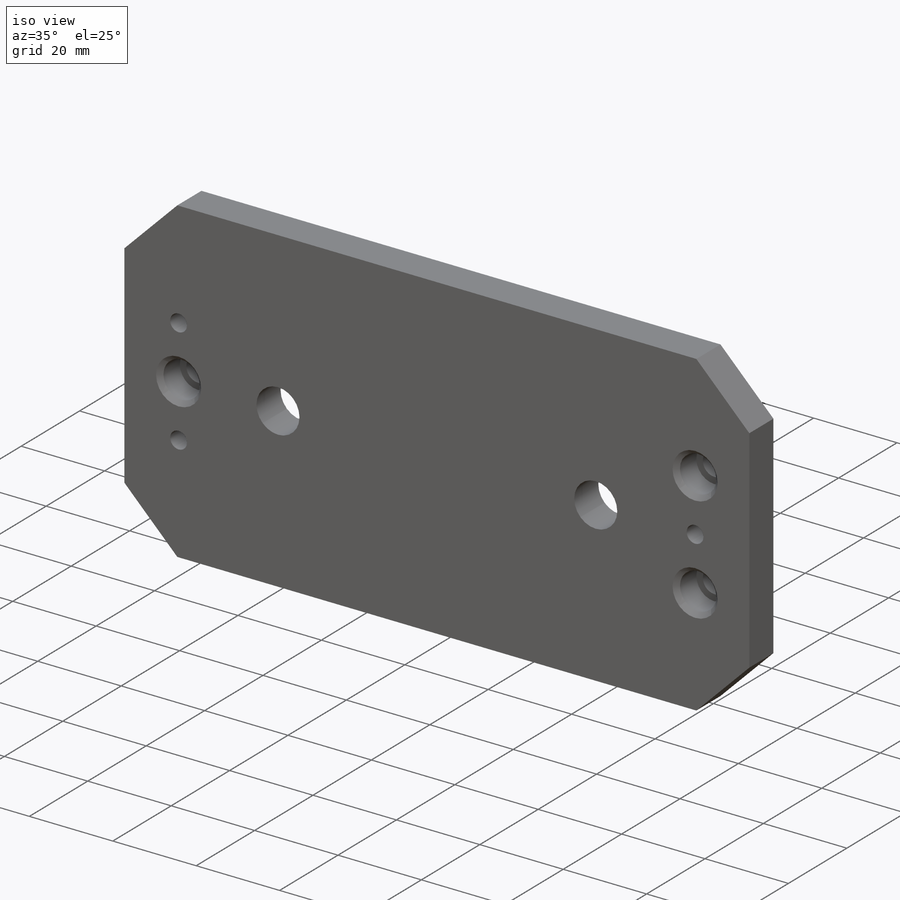
[diagram: iso view]
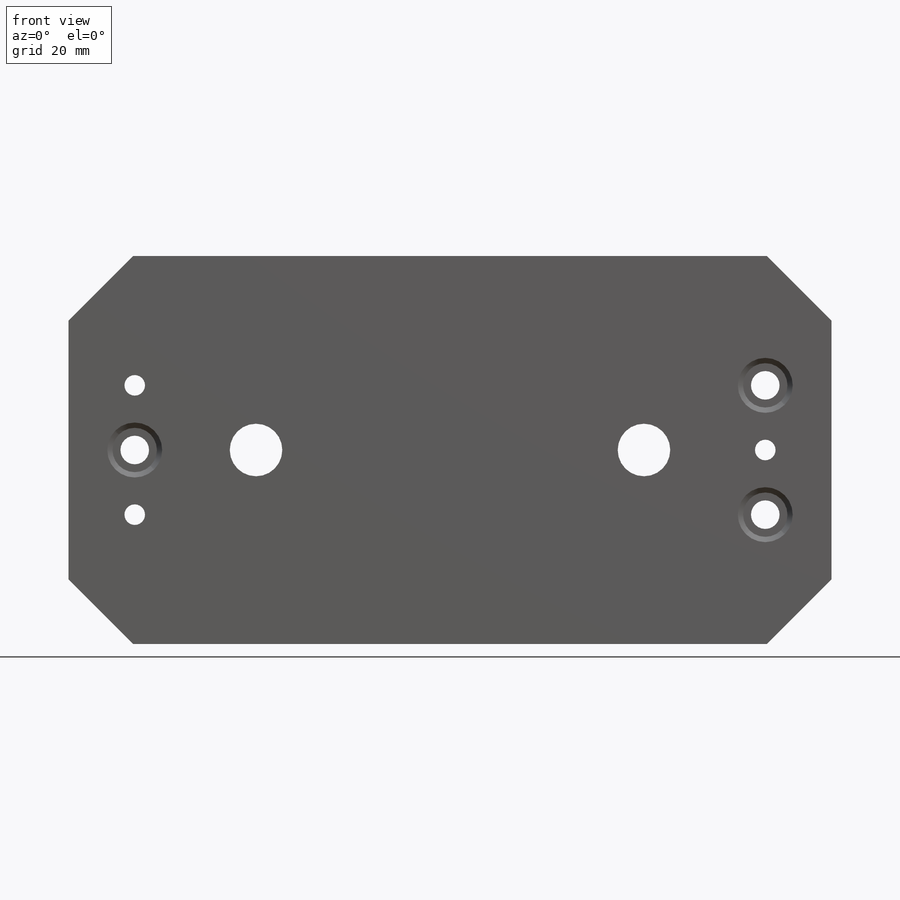
[diagram: front view]
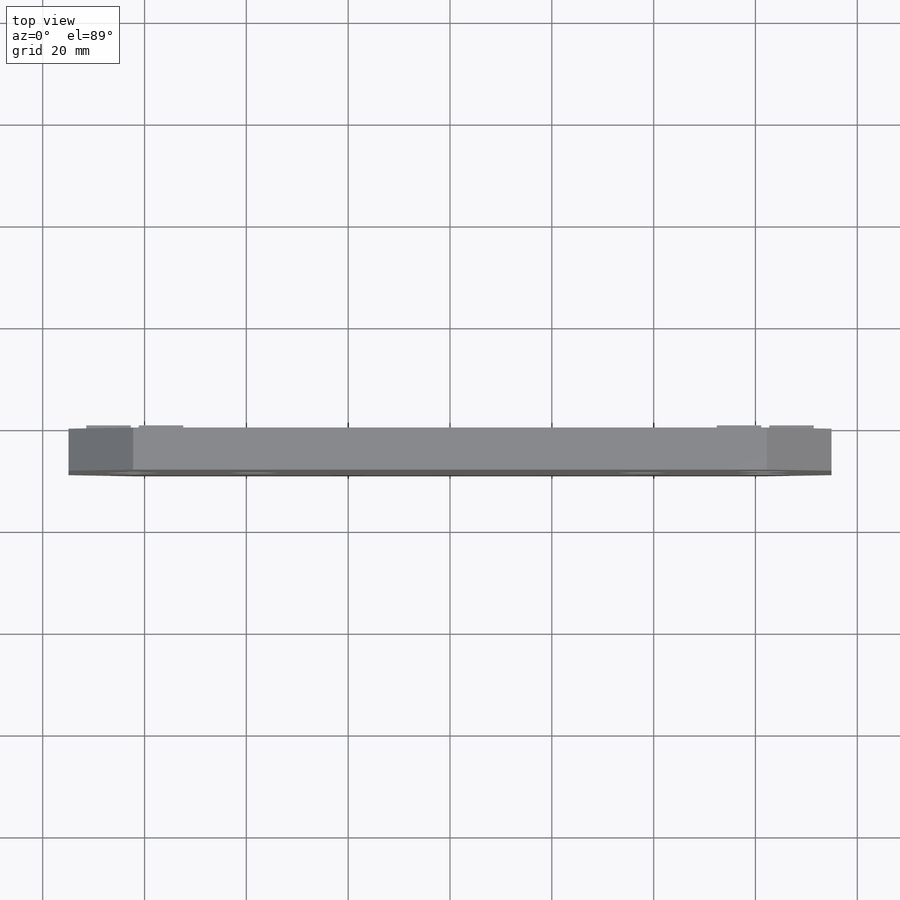
[diagram: top view]
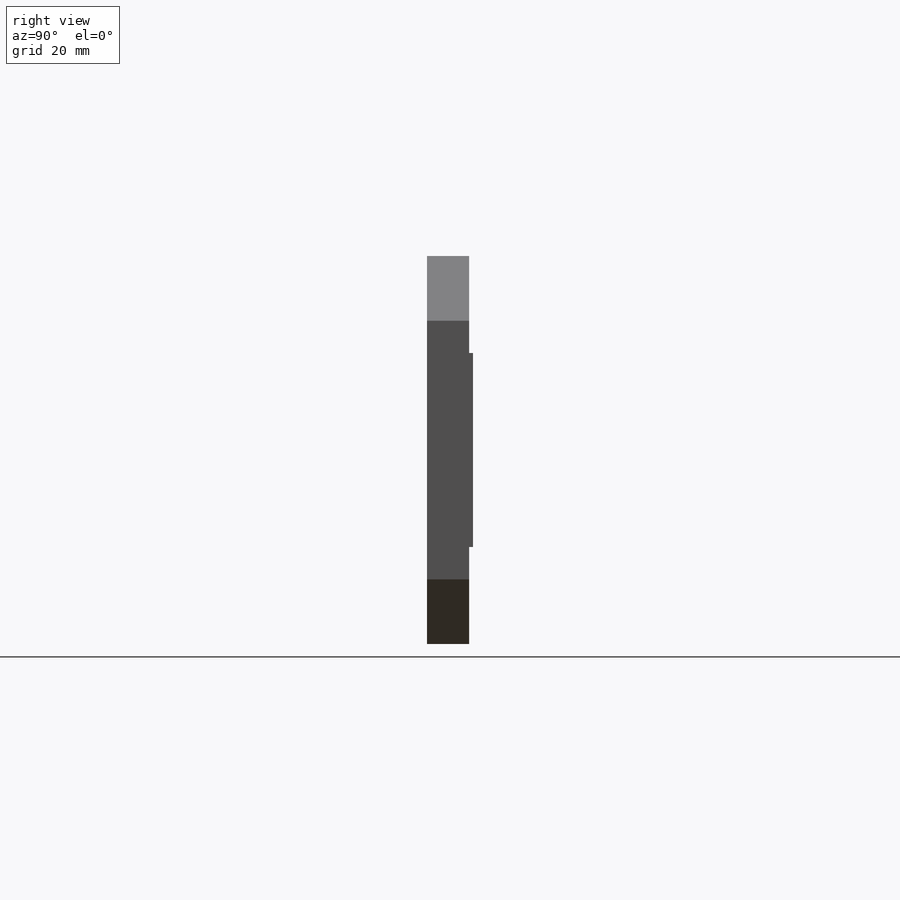
[diagram: right view]
SOLIDWORKS PART (.sldprt)
format: sldprt  version: not decoded by parser v0  size: 354,304 bytes
history: native  units: mm
features: sketch x9, hole x3, thread x3, cut_extrude x2, material x1, extrude x1, chamfer x1 (+17 scaffold rows collapsed)
feature tree (37):
  scaffold x17  (default folders/planes/origin — collapsed)
  material  "6061-T6 Al"
  sketch  "Sketch1"  dims[c1.D1=127.0mm c1.D2=101.6mm c1.D3=50.8mm c1.D4=76.2mm c2.D1=149.86mm c2.D2=76.2mm]
  extrude  "Extrude1"  Depth=9.017mm
  sketch  "Sketch2"  dims[D1=19.05mm D2=52.4002mm D3=38.1mm]
  cut_extrude  "Cut-Extrude1"  Depth=0.762mm
  hole  "#10-32 Tapped Hole1"  Diameter=4.0386mm Depth=9.017mm
  sketch  "Sketch4"  dims[D1=12.7mm D2=12.7mm D3=61.9252mm D4=61.9252mm D5=25.4mm]
  sketch  "Sketch3"  dims[hole-wizard template sketch: 60 standard entries collapsed; hole parameters kept: c18.Thru Tap Drill Depth=9.017mm]
  thread  "Hole Thread1"  Diameter=4.826mm  [1 undecoded]
  thread  "Hole Thread2"  Diameter=4.826mm  [1 undecoded]
  thread  "Hole Thread3"  Diameter=4.826mm  [1 undecoded]
  hole  "CBORE for #10 Socket Head Cap Screw1"  Diameter=5.6134mm Depth=9.017mm
  sketch  "Sketch6"  dims[D1=12.7mm D2=61.9252mm D3=25.4mm]
  sketch  "Sketch5"  dims[hole-wizard template sketch: 42 standard entries collapsed; hole parameters kept: c12.Thru Hole Depth=9.017mm c12.C'Bore Dia.=8.7122mm c12.C'Bore Depth=6.6548mm c12.Near C'Sink Dia.=10.795mm c12.D6=~4.399409mm c12.Near C'Sink Angle=90.0deg]
  chamfer  "Chamfer1"  Distance=12.7mm Angle=45deg
  sketch  "Sketch7"  dims[D1=1.5748mm]
  cut_extrude  "Cut-Extrude2"  [1 undecoded]
  hole  "13/32 (0.40625) Diameter Hole1"  Diameter=10.31875mm Depth=9.017mm
  sketch  "Sketch9"  dims[D1=38.1mm D2=38.1mm]
  sketch  "Sketch8"  dims[hole-wizard template sketch: 60 standard entries collapsed; hole parameters kept: c18.Thru Hole Depth=9.017mm]
decode coverage: 18 of 19 modeling features carry decoded parameters
note: ~ marks probable driven/reference dimensions
note: 4 parameter values undecoded
note: suppression state not decoded; provenance and decode notes live in map.json
